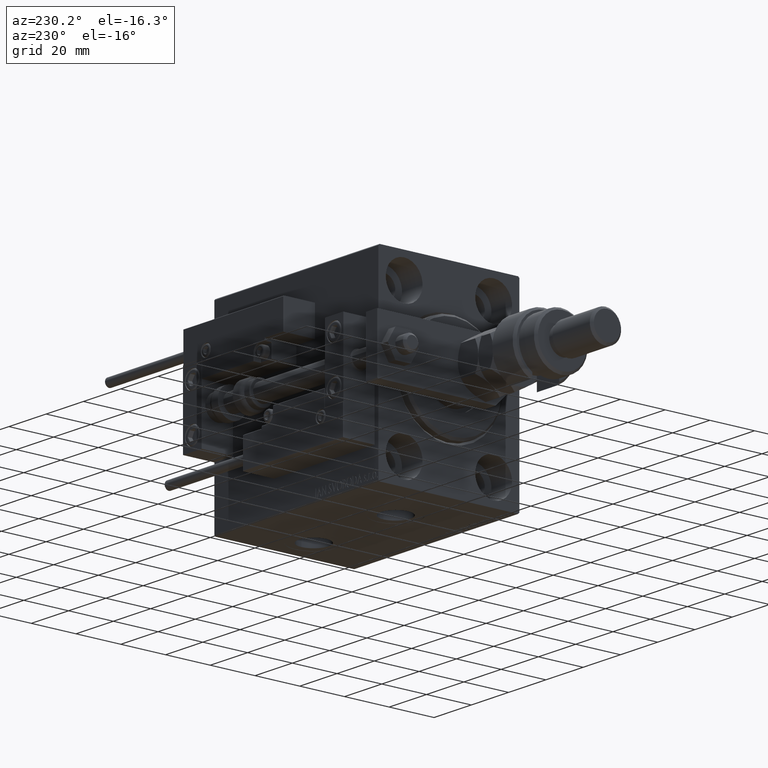
[diagram: clean part render]
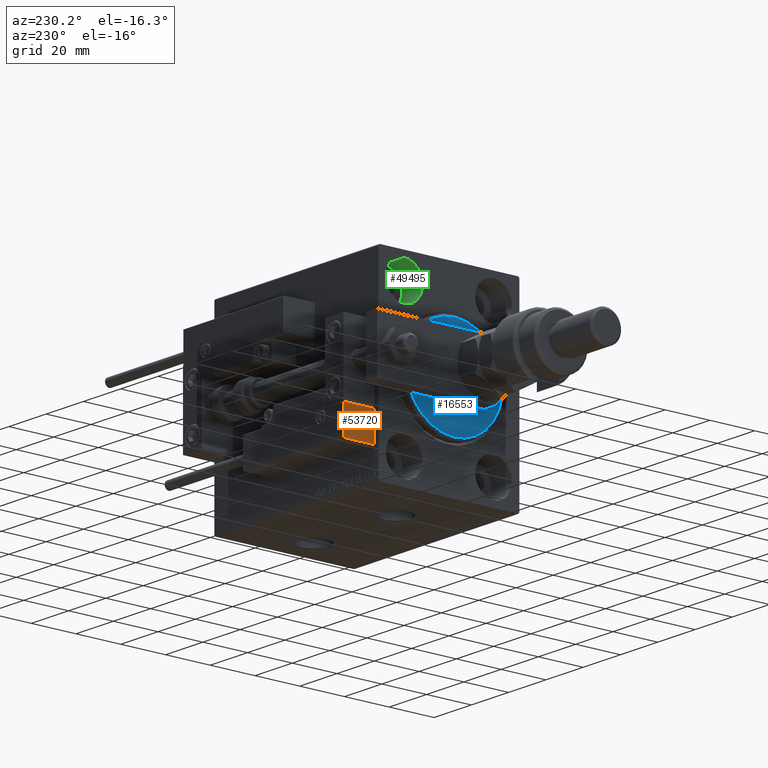
[diagram: same view with three faces highlighted in distinct colors, each labeled with its STEP entity id]
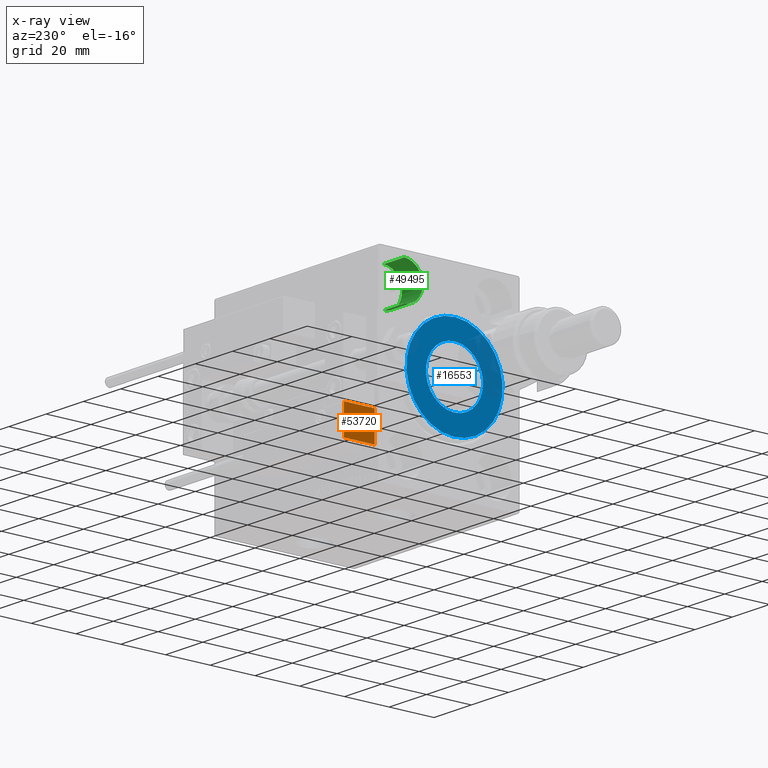
[diagram: x-ray of the same camera — body ghosted, the three highlighted faces saturated]
A machine part, auxiliary view with three faces highlighted in distinct colors.
The next image is the same camera in x-ray (body ghosted, the three faces saturated) — at least one of them is partly hidden behind the body in this view.
Their STEP definitions:

[orange] entity #53720 — the highlighted planar face has unit normal (1, 0, -0).
#2540 = EDGE_LOOP ( 'NONE', ( #51627, #54114, #50234, #18392 ) ) ;
#3536 = CARTESIAN_POINT ( 'NONE',  ( -26.99999999999993605, 20.00000000000002132, 14.00000000000000000 ) ) ;
#5853 = VERTEX_POINT ( 'NONE', #27845 ) ;
#7178 = DIRECTION ( 'NONE',  ( -8.006416042969869188E-16, -1.000000000000000000, 0.000000000000000000 ) ) ;
#7639 = VECTOR ( 'NONE', #7178, 1000.000000000000000 ) ;
#7714 = VECTOR ( 'NONE', #52290, 1000.000000000000000 ) ;
#8566 = AXIS2_PLACEMENT_3D ( 'NONE', #3536, #31888, #20317 ) ;
#9235 = EDGE_CURVE ( 'NONE', #19316, #38382, #32496, .T. ) ;
#9417 = EDGE_CURVE ( 'NONE', #5853, #38382, #51154, .T. ) ;
#10385 = CARTESIAN_POINT ( 'NONE',  ( -26.99999999999994671, 7.000000000000005329, 0.000000000000000000 ) ) ;
#12065 = FACE_OUTER_BOUND ( 'NONE', #2540, .T. ) ;
#12681 = DIRECTION ( 'NONE',  ( -0.000000000000000000, -0.000000000000000000, -1.000000000000000000 ) ) ;
#14126 = CARTESIAN_POINT ( 'NONE',  ( -26.99999999999993605, 20.00000000000002132, 14.00000000000000000 ) ) ;
#15156 = CARTESIAN_POINT ( 'NONE',  ( -26.99999999999993605, 20.00000000000002132, 13.70000000000000107 ) ) ;
#18392 = ORIENTED_EDGE ( 'NONE', *, *, #9235, .T. ) ;
#19316 = VERTEX_POINT ( 'NONE', #30175 ) ;
#20317 = DIRECTION ( 'NONE',  ( 8.006416042969869188E-16, 1.000000000000000000, 0.000000000000000000 ) ) ;
#21210 = CARTESIAN_POINT ( 'NONE',  ( -26.99999999999994671, 7.000000000000005329, 14.00000000000000000 ) ) ;
#22309 = LINE ( 'NONE', #15156, #34437 ) ;
#24713 = PLANE ( 'NONE',  #8566 ) ;
#25144 = VERTEX_POINT ( 'NONE', #30569 ) ;
#26756 = EDGE_CURVE ( 'NONE', #25144, #19316, #47898, .T. ) ;
#27845 = CARTESIAN_POINT ( 'NONE',  ( -26.99999999999994671, 7.000000000000005329, 13.70000000000000107 ) ) ;
#30175 = CARTESIAN_POINT ( 'NONE',  ( -26.99999999999993605, 20.00000000000002132, 0.000000000000000000 ) ) ;
#30569 = CARTESIAN_POINT ( 'NONE',  ( -26.99999999999993605, 20.00000000000002132, 13.70000000000000107 ) ) ;
#31888 = DIRECTION ( 'NONE',  ( 1.000000000000000000, -8.006416042969869188E-16, 0.000000000000000000 ) ) ;
#32496 = LINE ( 'NONE', #45107, #7639 ) ;
#34437 = VECTOR ( 'NONE', #47586, 1000.000000000000000 ) ;
#38382 = VERTEX_POINT ( 'NONE', #10385 ) ;
#39135 = EDGE_CURVE ( 'NONE', #5853, #25144, #22309, .T. ) ;
#45107 = CARTESIAN_POINT ( 'NONE',  ( -26.99999999999993605, 20.00000000000002132, 0.000000000000000000 ) ) ;
#47586 = DIRECTION ( 'NONE',  ( 8.006416042969869188E-16, 1.000000000000000000, -0.000000000000000000 ) ) ;
#47898 = LINE ( 'NONE', #14126, #7714 ) ;
#50234 = ORIENTED_EDGE ( 'NONE', *, *, #26756, .T. ) ;
#51154 = LINE ( 'NONE', #21210, #52407 ) ;
#51627 = ORIENTED_EDGE ( 'NONE', *, *, #9417, .F. ) ;
#52290 = DIRECTION ( 'NONE',  ( -0.000000000000000000, -0.000000000000000000, -1.000000000000000000 ) ) ;
#52407 = VECTOR ( 'NONE', #12681, 1000.000000000000000 ) ;
#53720 = ADVANCED_FACE ( 'NONE', ( #12065 ), #24713, .F. ) ;
#54114 = ORIENTED_EDGE ( 'NONE', *, *, #39135, .T. ) ;

[blue] entity #16553 — the highlighted planar face has unit normal (-1, 0, 0).
#566 = CIRCLE ( 'NONE', #31277, 21.50000000000000355 ) ;
#723 = CARTESIAN_POINT ( 'NONE',  ( 3.000000000000000000, 2.694222958124177598E-15, -21.50000000000000355 ) ) ;
#2702 = FACE_BOUND ( 'NONE', #6798, .T. ) ;
#3450 = EDGE_CURVE ( 'NONE', #14616, #7787, #566, .T. ) ;
#6538 = FACE_OUTER_BOUND ( 'NONE', #14786, .T. ) ;
#6798 = EDGE_LOOP ( 'NONE', ( #7839, #27151 ) ) ;
#7000 = ORIENTED_EDGE ( 'NONE', *, *, #30029, .T. ) ;
#7787 = VERTEX_POINT ( 'NONE', #723 ) ;
#7839 = ORIENTED_EDGE ( 'NONE', *, *, #19271, .T. ) ;
#10466 = AXIS2_PLACEMENT_3D ( 'NONE', #48557, #23817, #19965 ) ;
#14175 = CIRCLE ( 'NONE', #24711, 12.75000000000000000 ) ;
#14544 = DIRECTION ( 'NONE',  ( 1.000000000000000000, -0.000000000000000000, 0.000000000000000000 ) ) ;
#14616 = VERTEX_POINT ( 'NONE', #38675 ) ;
#14786 = EDGE_LOOP ( 'NONE', ( #42942, #7000 ) ) ;
#15172 = CARTESIAN_POINT ( 'NONE',  ( 3.000000000000000000, 0.000000000000000000, 12.75000000000000000 ) ) ;
#16553 = ADVANCED_FACE ( 'NONE', ( #6538, #2702 ), #44741, .T. ) ;
#17534 = CARTESIAN_POINT ( 'NONE',  ( 3.000000000000000000, 0.000000000000000000, 0.000000000000000000 ) ) ;
#18930 = CARTESIAN_POINT ( 'NONE',  ( 3.000000000000000000, 0.000000000000000000, 0.000000000000000000 ) ) ;
#19271 = EDGE_CURVE ( 'NONE', #20997, #40362, #25515, .T. ) ;
#19965 = DIRECTION ( 'NONE',  ( 0.000000000000000000, 0.000000000000000000, -1.000000000000000000 ) ) ;
#20906 = CARTESIAN_POINT ( 'NONE',  ( 3.000000000000000000, 1.561424668912874914E-15, -12.75000000000000000 ) ) ;
#20997 = VERTEX_POINT ( 'NONE', #15172 ) ;
#23817 = DIRECTION ( 'NONE',  ( 1.000000000000000000, -0.000000000000000000, 0.000000000000000000 ) ) ;
#24703 = DIRECTION ( 'NONE',  ( 0.000000000000000000, 0.000000000000000000, -1.000000000000000000 ) ) ;
#24711 = AXIS2_PLACEMENT_3D ( 'NONE', #29385, #46135, #24703 ) ;
#25515 = CIRCLE ( 'NONE', #53581, 12.75000000000000000 ) ;
#26039 = DIRECTION ( 'NONE',  ( 0.000000000000000000, 0.000000000000000000, -1.000000000000000000 ) ) ;
#27151 = ORIENTED_EDGE ( 'NONE', *, *, #37438, .T. ) ;
#29385 = CARTESIAN_POINT ( 'NONE',  ( 3.000000000000000000, 0.000000000000000000, 0.000000000000000000 ) ) ;
#30029 = EDGE_CURVE ( 'NONE', #7787, #14616, #39430, .T. ) ;
#31277 = AXIS2_PLACEMENT_3D ( 'NONE', #36489, #53236, #32371 ) ;
#32371 = DIRECTION ( 'NONE',  ( 0.000000000000000000, 0.000000000000000000, -1.000000000000000000 ) ) ;
#33502 = AXIS2_PLACEMENT_3D ( 'NONE', #18930, #14544, #48054 ) ;
#36489 = CARTESIAN_POINT ( 'NONE',  ( 3.000000000000000000, 0.000000000000000000, 0.000000000000000000 ) ) ;
#37438 = EDGE_CURVE ( 'NONE', #40362, #20997, #14175, .T. ) ;
#38675 = CARTESIAN_POINT ( 'NONE',  ( 3.000000000000000000, 0.000000000000000000, 21.50000000000000355 ) ) ;
#39430 = CIRCLE ( 'NONE', #10466, 21.50000000000000355 ) ;
#40362 = VERTEX_POINT ( 'NONE', #20906 ) ;
#42796 = DIRECTION ( 'NONE',  ( -1.000000000000000000, 0.000000000000000000, -0.000000000000000000 ) ) ;
#42942 = ORIENTED_EDGE ( 'NONE', *, *, #3450, .T. ) ;
#44741 = PLANE ( 'NONE',  #33502 ) ;
#46135 = DIRECTION ( 'NONE',  ( -1.000000000000000000, 0.000000000000000000, -0.000000000000000000 ) ) ;
#48054 = DIRECTION ( 'NONE',  ( 0.000000000000000000, 0.000000000000000000, -1.000000000000000000 ) ) ;
#48557 = CARTESIAN_POINT ( 'NONE',  ( 3.000000000000000000, 0.000000000000000000, 0.000000000000000000 ) ) ;
#53236 = DIRECTION ( 'NONE',  ( 1.000000000000000000, -0.000000000000000000, 0.000000000000000000 ) ) ;
#53581 = AXIS2_PLACEMENT_3D ( 'NONE', #17534, #42796, #26039 ) ;

[green] entity #49495 — the highlighted cylindrical surface (edge-blend (fillet) strip) has radius 8.25 mm, axis along (-1, -0, -0).
#1018 = LINE ( 'NONE', #34567, #13127 ) ;
#2338 = VERTEX_POINT ( 'NONE', #7999 ) ;
#7118 = AXIS2_PLACEMENT_3D ( 'NONE', #17640, #26408, #51419 ) ;
#7343 = EDGE_CURVE ( 'NONE', #2338, #24446, #19228, .T. ) ;
#7542 = CIRCLE ( 'NONE', #26857, 8.249999999999992895 ) ;
#7999 = CARTESIAN_POINT ( 'NONE',  ( 11.00000000000000000, 20.00000000000000355, 23.25000000000000355 ) ) ;
#9010 = CARTESIAN_POINT ( 'NONE',  ( 0.000000000000000000, 20.00000000000000355, 23.25000000000000355 ) ) ;
#9541 = DIRECTION ( 'NONE',  ( -1.000000000000000000, -0.000000000000000000, -0.000000000000000000 ) ) ;
#11269 = VERTEX_POINT ( 'NONE', #24240 ) ;
#11684 = ORIENTED_EDGE ( 'NONE', *, *, #47336, .F. ) ;
#13127 = VECTOR ( 'NONE', #9541, 1000.000000000000000 ) ;
#13415 = EDGE_CURVE ( 'NONE', #23949, #11269, #1018, .T. ) ;
#17640 = CARTESIAN_POINT ( 'NONE',  ( 0.000000000000000000, 20.00000000000000355, 31.50000000000000000 ) ) ;
#17770 = FACE_OUTER_BOUND ( 'NONE', #50767, .T. ) ;
#19228 = LINE ( 'NONE', #35995, #25158 ) ;
#23949 = VERTEX_POINT ( 'NONE', #32040 ) ;
#24240 = CARTESIAN_POINT ( 'NONE',  ( 0.000000000000000000, 20.00000000000000355, 39.74999999999999289 ) ) ;
#24446 = VERTEX_POINT ( 'NONE', #9010 ) ;
#25158 = VECTOR ( 'NONE', #49437, 1000.000000000000000 ) ;
#25935 = AXIS2_PLACEMENT_3D ( 'NONE', #38389, #30145, #54112 ) ;
#26009 = CYLINDRICAL_SURFACE ( 'NONE', #25935, 8.249999999999992895 ) ;
#26408 = DIRECTION ( 'NONE',  ( -1.000000000000000000, 0.000000000000000000, 0.000000000000000000 ) ) ;
#26857 = AXIS2_PLACEMENT_3D ( 'NONE', #31322, #30786, #53486 ) ;
#30145 = DIRECTION ( 'NONE',  ( -1.000000000000000000, -0.000000000000000000, -0.000000000000000000 ) ) ;
#30786 = DIRECTION ( 'NONE',  ( -1.000000000000000000, 0.000000000000000000, 0.000000000000000000 ) ) ;
#31322 = CARTESIAN_POINT ( 'NONE',  ( 11.00000000000000000, 20.00000000000000355, 31.50000000000000000 ) ) ;
#32040 = CARTESIAN_POINT ( 'NONE',  ( 11.00000000000000000, 20.00000000000000355, 39.74999999999999289 ) ) ;
#34567 = CARTESIAN_POINT ( 'NONE',  ( 11.00000000000000000, 20.00000000000000355, 39.74999999999999289 ) ) ;
#35995 = CARTESIAN_POINT ( 'NONE',  ( 11.00000000000000000, 20.00000000000000355, 23.25000000000000355 ) ) ;
#37743 = ORIENTED_EDGE ( 'NONE', *, *, #13415, .F. ) ;
#38298 = EDGE_CURVE ( 'NONE', #24446, #11269, #40521, .T. ) ;
#38389 = CARTESIAN_POINT ( 'NONE',  ( 11.00000000000000000, 20.00000000000000355, 31.50000000000000000 ) ) ;
#38768 = ORIENTED_EDGE ( 'NONE', *, *, #38298, .T. ) ;
#40521 = CIRCLE ( 'NONE', #7118, 8.249999999999992895 ) ;
#41979 = ORIENTED_EDGE ( 'NONE', *, *, #7343, .T. ) ;
#47336 = EDGE_CURVE ( 'NONE', #2338, #23949, #7542, .T. ) ;
#49437 = DIRECTION ( 'NONE',  ( -1.000000000000000000, -0.000000000000000000, -0.000000000000000000 ) ) ;
#49495 = ADVANCED_FACE ( 'NONE', ( #17770 ), #26009, .F. ) ;
#50767 = EDGE_LOOP ( 'NONE', ( #11684, #41979, #38768, #37743 ) ) ;
#51419 = DIRECTION ( 'NONE',  ( 0.000000000000000000, 0.000000000000000000, 1.000000000000000000 ) ) ;
#53486 = DIRECTION ( 'NONE',  ( 0.000000000000000000, 0.000000000000000000, 1.000000000000000000 ) ) ;
#54112 = DIRECTION ( 'NONE',  ( 0.000000000000000000, 0.000000000000000000, 1.000000000000000000 ) ) ;